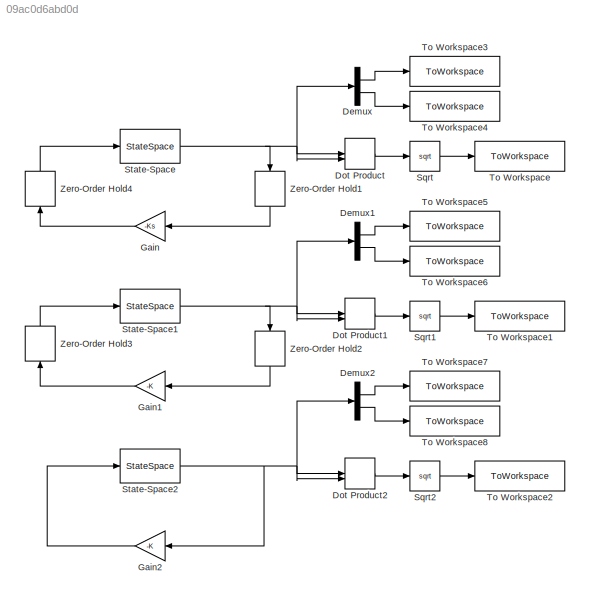
MODEL slx_09ac0d6abd0d
KIND model
CONFIG AbsTol = auto
CONFIG EnableMultiTasking = off
CONFIG FixedStep = auto
CONFIG MaxStep = auto
CONFIG MinStep = auto
CONFIG RelTol = 1e-3
CONFIG SampleTimeConstraint = Unconstrained
CONFIG SolverName = VariableStepAuto
CONFIG StartTime = 0.0
CONFIG StopTime = 5
BLOCK [Demux] Demux
  Outputs = 2
BLOCK [Demux] Demux1
  Outputs = 2
BLOCK [Demux] Demux2
  Outputs = 2
BLOCK [DotProduct] Dot Product
  OutDataTypeStr = Inherit: Inherit via internal rule
BLOCK [DotProduct] Dot Product1
  OutDataTypeStr = Inherit: Inherit via internal rule
BLOCK [DotProduct] Dot Product2
  OutDataTypeStr = Inherit: Inherit via internal rule
BLOCK [Gain] Gain
  Gain = -Ks
  Multiplication = Matrix(K*u)
BLOCK [Gain] Gain1
  Gain = -K
  Multiplication = Matrix(K*u)
BLOCK [Gain] Gain2
  Gain = -K
  Multiplication = Matrix(K*u)
BLOCK [Sqrt] Sqrt
BLOCK [Sqrt] Sqrt1
BLOCK [Sqrt] Sqrt2
BLOCK [StateSpace] State-Space
  A = A
  B = B
  C = C
  D = D
  InitialCondition = x0
BLOCK [StateSpace] State-Space1
  A = A
  B = B
  C = C
  D = D
  InitialCondition = x0
BLOCK [StateSpace] State-Space2
  A = A
  B = B
  C = C
  D = D
  InitialCondition = x0
BLOCK [ToWorkspace] To Workspace
  FixptAsFi = on
  MaxDataPoints = inf
  SampleTime = -1
  VariableName = lifting
BLOCK [ToWorkspace] To Workspace1
  FixptAsFi = on
  MaxDataPoints = inf
  SampleTime = -1
  VariableName = nonlifting
BLOCK [ToWorkspace] To Workspace2
  FixptAsFi = on
  MaxDataPoints = inf
  SampleTime = -1
  VariableName = continuous
BLOCK [ToWorkspace] To Workspace3
  FixptAsFi = on
  MaxDataPoints = inf
  SampleTime = -1
  VariableName = x_lifting
BLOCK [ToWorkspace] To Workspace4
  FixptAsFi = on
  MaxDataPoints = inf
  SampleTime = -1
  VariableName = u_lifting
BLOCK [ToWorkspace] To Workspace5
  FixptAsFi = on
  MaxDataPoints = inf
  SampleTime = -1
  VariableName = x_nonlifting
BLOCK [ToWorkspace] To Workspace6
  FixptAsFi = on
  MaxDataPoints = inf
  SampleTime = -1
  VariableName = u_nonlifting
BLOCK [ToWorkspace] To Workspace7
  FixptAsFi = on
  MaxDataPoints = inf
  SampleTime = -1
  VariableName = x_continuous
BLOCK [ToWorkspace] To Workspace8
  FixptAsFi = on
  MaxDataPoints = inf
  SampleTime = -1
  VariableName = u_continuous
BLOCK [ZeroOrderHold] Zero-Order Hold1
  NameLocation = left
  SampleTime = h
BLOCK [ZeroOrderHold] Zero-Order Hold2
  NameLocation = left
  SampleTime = h
BLOCK [ZeroOrderHold] Zero-Order Hold3
  NameLocation = left
  SampleTime = t_sim
BLOCK [ZeroOrderHold] Zero-Order Hold4
  NameLocation = left
  SampleTime = t_sim
LINE Demux1:1 -> To Workspace5:1
LINE Demux1:2 -> To Workspace6:1
LINE Demux2:1 -> To Workspace7:1
LINE Demux2:2 -> To Workspace8:1
LINE Demux:1 -> To Workspace3:1
LINE Demux:2 -> To Workspace4:1
LINE Dot Product1:1 -> Sqrt1:1
LINE Dot Product2:1 -> Sqrt2:1
LINE Dot Product:1 -> Sqrt:1
LINE Gain1:1 -> Zero-Order Hold3:1
LINE Gain2:1 -> State-Space2:1
LINE Gain:1 -> Zero-Order Hold4:1
LINE Sqrt1:1 -> To Workspace1:1
LINE Sqrt2:1 -> To Workspace2:1
LINE Sqrt:1 -> To Workspace:1
NET State-Space1:1 -> Demux1:1, Dot Product1:1, Dot Product1:2, Zero-Order Hold2:1
NET State-Space2:1 -> Demux2:1, Dot Product2:1, Dot Product2:2, Gain2:1
NET State-Space:1 -> Demux:1, Dot Product:1, Dot Product:2, Zero-Order Hold1:1
LINE Zero-Order Hold1:1 -> Gain:1
LINE Zero-Order Hold2:1 -> Gain1:1
LINE Zero-Order Hold3:1 -> State-Space1:1
LINE Zero-Order Hold4:1 -> State-Space:1
note: NET lines group one-source signal fan-out (src -> all destinations, sorted); 1:1 wires keep LINE
